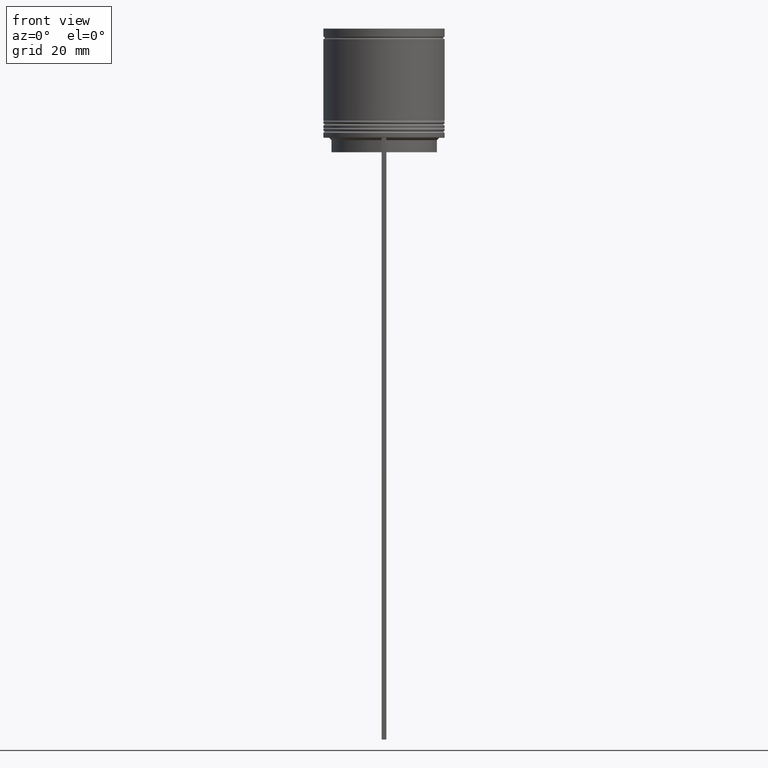
[diagram: clean part render]
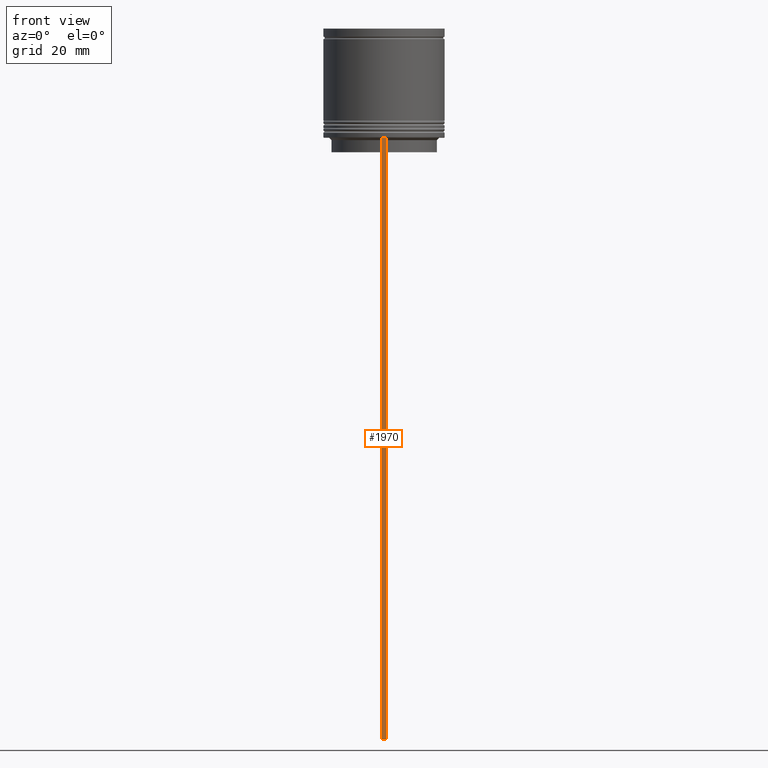
[diagram: same view with one face highlighted and labeled with its STEP entity id]
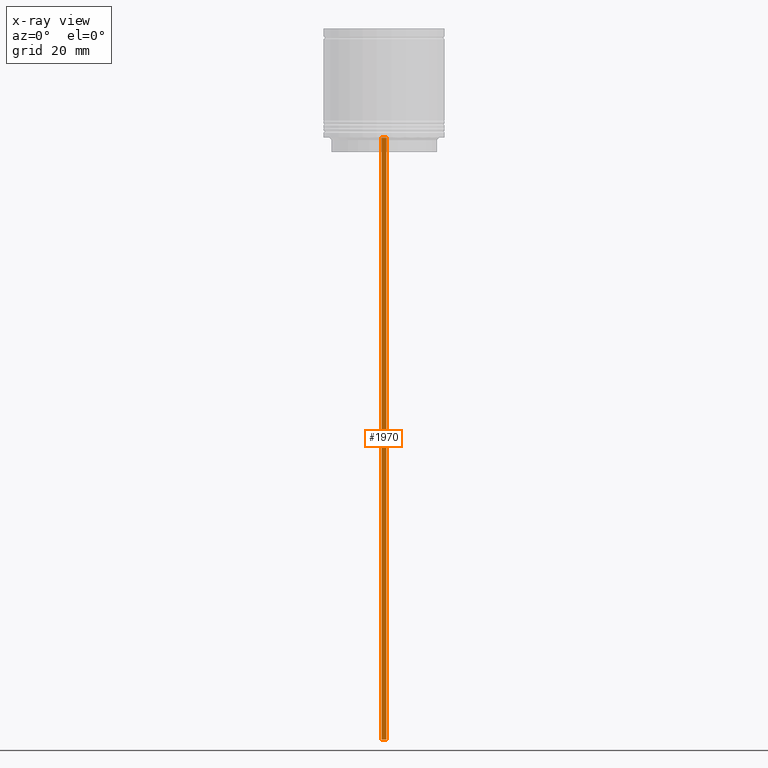
[diagram: x-ray of the same camera — body ghosted, the highlighted face saturated]
A machine part, front view. The second image highlights one B-rep face of the part: STEP entity #1970.
The next image is the same camera in x-ray: the body ghosted, the highlighted face saturated — about 0% of this face is hidden behind the body in this view.
In plain terms, the highlighted planar face has unit normal (0, -1, -0).
Its self-contained STEP definition (entity closure, byte-faithful):
#34 = LINE ( 'NONE', #808, #933 ) ;
#74 = CARTESIAN_POINT ( 'NONE',  ( 0.5000000000000000000, -12.49999999999999289, -146.5000000000000000 ) ) ;
#75 = DIRECTION ( 'NONE',  ( 0.000000000000000000, -1.000000000000000000, -0.000000000000000000 ) ) ;
#76 = ORIENTED_EDGE ( 'NONE', *, *, #1483, .F. ) ;
#117 = CARTESIAN_POINT ( 'NONE',  ( 0.5000000000000000000, -12.49999999999999289, 2.519992006393609874 ) ) ;
#126 = ORIENTED_EDGE ( 'NONE', *, *, #506, .F. ) ;
#411 = CARTESIAN_POINT ( 'NONE',  ( 0.5000000000000000000, -12.49999999999999289, -22.50000000000000000 ) ) ;
#430 = EDGE_CURVE ( 'NONE', #1710, #680, #1566, .T. ) ;
#506 = EDGE_CURVE ( 'NONE', #680, #869, #34, .T. ) ;
#511 = CARTESIAN_POINT ( 'NONE',  ( -0.5000000000000000000, -12.49999999999999289, 2.519992006393609874 ) ) ;
#540 = LINE ( 'NONE', #411, #1440 ) ;
#680 = VERTEX_POINT ( 'NONE', #74 ) ;
#695 = VECTOR ( 'NONE', #1141, 1000.000000000000000 ) ;
#765 = DIRECTION ( 'NONE',  ( 0.000000000000000000, 0.000000000000000000, -1.000000000000000000 ) ) ;
#808 = CARTESIAN_POINT ( 'NONE',  ( 0.5000000000000000000, -12.49999999999999289, -146.5000000000000000 ) ) ;
#869 = VERTEX_POINT ( 'NONE', #2052 ) ;
#921 = CARTESIAN_POINT ( 'NONE',  ( -0.5000000000000000000, -12.49999999999999289, -22.50000000000000000 ) ) ;
#933 = VECTOR ( 'NONE', #1008, 1000.000000000000000 ) ;
#1004 = EDGE_CURVE ( 'NONE', #1045, #869, #1965, .T. ) ;
#1008 = DIRECTION ( 'NONE',  ( -1.000000000000000000, 0.000000000000000000, 0.000000000000000000 ) ) ;
#1045 = VERTEX_POINT ( 'NONE', #921 ) ;
#1141 = DIRECTION ( 'NONE',  ( 0.000000000000000000, 0.000000000000000000, -1.000000000000000000 ) ) ;
#1213 = ORIENTED_EDGE ( 'NONE', *, *, #1004, .T. ) ;
#1222 = ORIENTED_EDGE ( 'NONE', *, *, #430, .F. ) ;
#1351 = PLANE ( 'NONE',  #1713 ) ;
#1440 = VECTOR ( 'NONE', #1550, 1000.000000000000000 ) ;
#1483 = EDGE_CURVE ( 'NONE', #1045, #1710, #540, .T. ) ;
#1489 = EDGE_LOOP ( 'NONE', ( #76, #1213, #126, #1222 ) ) ;
#1524 = FACE_OUTER_BOUND ( 'NONE', #1489, .T. ) ;
#1550 = DIRECTION ( 'NONE',  ( 1.000000000000000000, 0.000000000000000000, 0.000000000000000000 ) ) ;
#1566 = LINE ( 'NONE', #117, #1773 ) ;
#1710 = VERTEX_POINT ( 'NONE', #1758 ) ;
#1713 = AXIS2_PLACEMENT_3D ( 'NONE', #1842, #75, #2000 ) ;
#1758 = CARTESIAN_POINT ( 'NONE',  ( 0.5000000000000000000, -12.49999999999999289, -22.50000000000000000 ) ) ;
#1773 = VECTOR ( 'NONE', #765, 1000.000000000000000 ) ;
#1842 = CARTESIAN_POINT ( 'NONE',  ( 0.5000000000000000000, -12.49999999999999289, 2.519992006393609874 ) ) ;
#1965 = LINE ( 'NONE', #511, #695 ) ;
#1970 = ADVANCED_FACE ( 'NONE', ( #1524 ), #1351, .T. ) ;
#2000 = DIRECTION ( 'NONE',  ( 0.000000000000000000, 0.000000000000000000, -1.000000000000000000 ) ) ;
#2052 = CARTESIAN_POINT ( 'NONE',  ( -0.5000000000000000000, -12.49999999999999289, -146.5000000000000000 ) ) ;